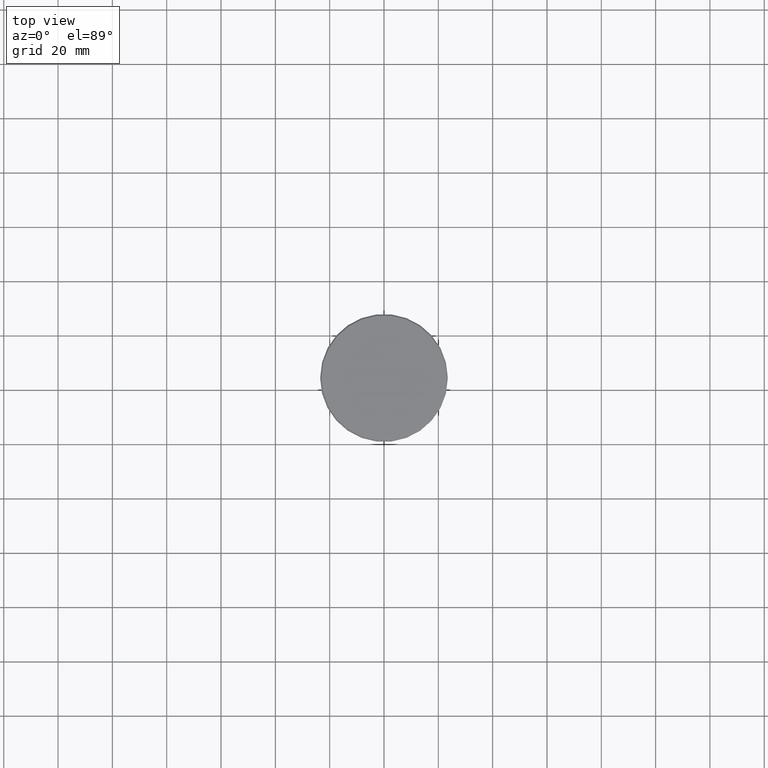
[diagram: clean part render]
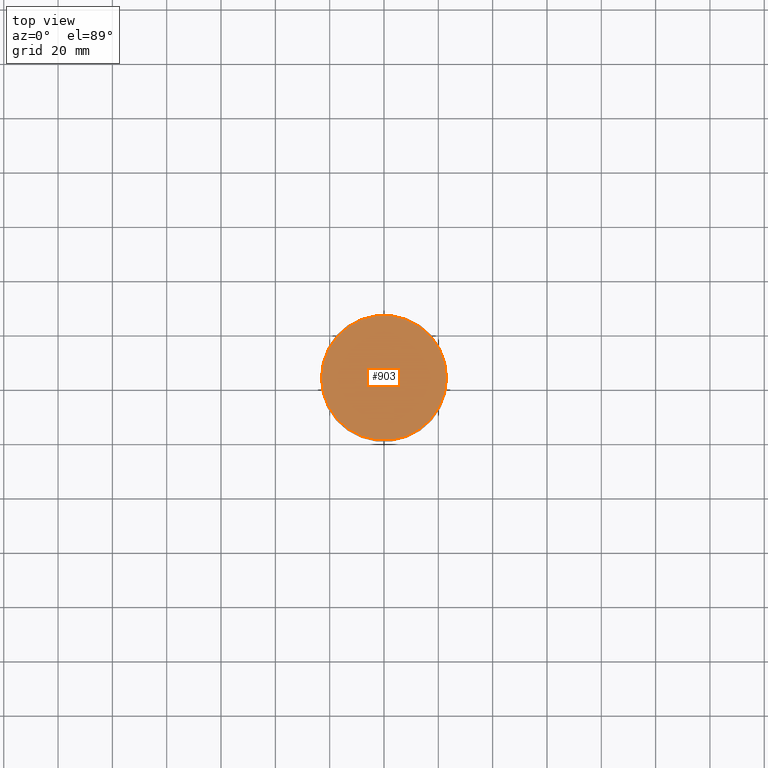
[diagram: same view with one face highlighted and labeled with its STEP entity id]
A machine part, top view. The second image highlights one B-rep face of the part: STEP entity #903.
In plain terms, the highlighted planar face has unit normal (0, -0, 1).
Its self-contained STEP definition (entity closure, byte-faithful):
#94 = AXIS2_PLACEMENT_3D ( 'NONE', #670, #663, #201 ) ;
#140 = DIRECTION ( 'NONE',  ( 0.000000000000000000, -0.000000000000000000, 1.000000000000000000 ) ) ;
#201 = DIRECTION ( 'NONE',  ( 1.000000000000000000, 0.000000000000000000, 0.000000000000000000 ) ) ;
#229 = EDGE_CURVE ( 'NONE', #947, #578, #383, .T. ) ;
#243 = ORIENTED_EDGE ( 'NONE', *, *, #229, .T. ) ;
#285 = DIRECTION ( 'NONE',  ( 1.000000000000000000, 0.000000000000000000, 0.000000000000000000 ) ) ;
#325 = CARTESIAN_POINT ( 'NONE',  ( 0.000000000000000000, 0.000000000000000000, 0.000000000000000000 ) ) ;
#368 = EDGE_LOOP ( 'NONE', ( #971, #243 ) ) ;
#383 = CIRCLE ( 'NONE', #435, 23.00000000000005329 ) ;
#435 = AXIS2_PLACEMENT_3D ( 'NONE', #804, #994, #285 ) ;
#500 = DIRECTION ( 'NONE',  ( 1.000000000000000000, 0.000000000000000000, 0.000000000000000000 ) ) ;
#578 = VERTEX_POINT ( 'NONE', #731 ) ;
#592 = FACE_OUTER_BOUND ( 'NONE', #368, .T. ) ;
#663 = DIRECTION ( 'NONE',  ( -0.000000000000000000, -0.000000000000000000, 1.000000000000000000 ) ) ;
#670 = CARTESIAN_POINT ( 'NONE',  ( 0.000000000000000000, 0.000000000000000000, 0.000000000000000000 ) ) ;
#671 = AXIS2_PLACEMENT_3D ( 'NONE', #325, #140, #500 ) ;
#731 = CARTESIAN_POINT ( 'NONE',  ( -23.00000000000005329, 0.000000000000000000, 0.000000000000000000 ) ) ;
#804 = CARTESIAN_POINT ( 'NONE',  ( 0.000000000000000000, 0.000000000000000000, 0.000000000000000000 ) ) ;
#903 = ADVANCED_FACE ( 'NONE', ( #592 ), #1144, .T. ) ;
#947 = VERTEX_POINT ( 'NONE', #1074 ) ;
#971 = ORIENTED_EDGE ( 'NONE', *, *, #1065, .T. ) ;
#994 = DIRECTION ( 'NONE',  ( -0.000000000000000000, -0.000000000000000000, 1.000000000000000000 ) ) ;
#1015 = CIRCLE ( 'NONE', #94, 23.00000000000005329 ) ;
#1065 = EDGE_CURVE ( 'NONE', #578, #947, #1015, .T. ) ;
#1074 = CARTESIAN_POINT ( 'NONE',  ( 23.00000000000005329, 2.847303808017599689E-15, 0.000000000000000000 ) ) ;
#1144 = PLANE ( 'NONE',  #671 ) ;